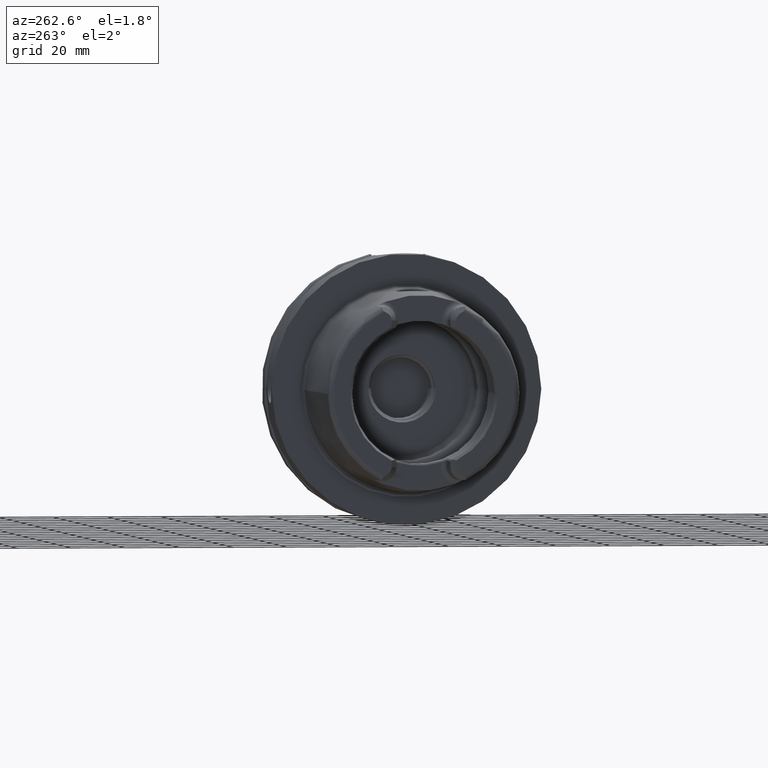
[diagram: clean part render]
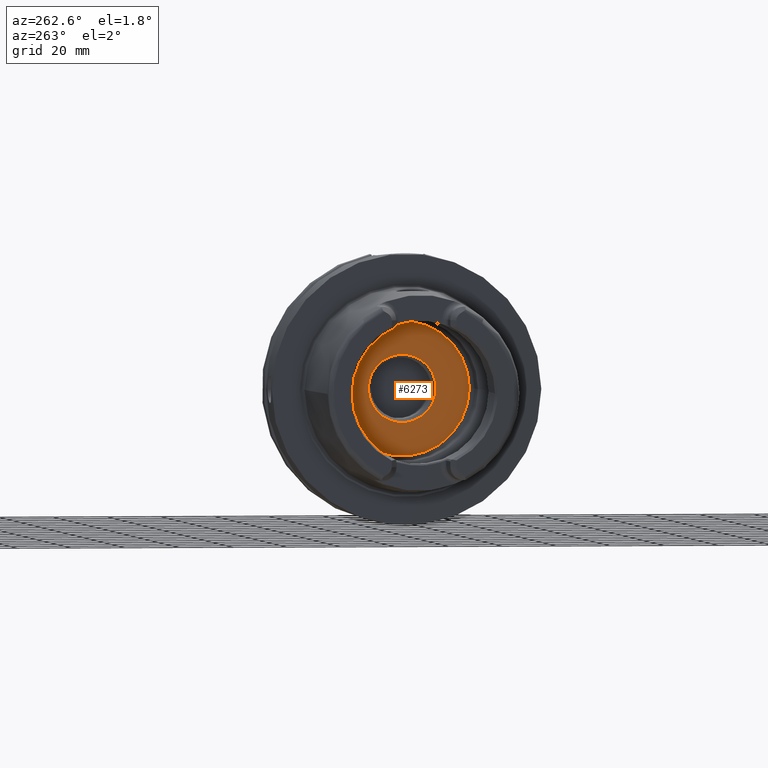
[diagram: same view with one face highlighted and labeled with its STEP entity id]
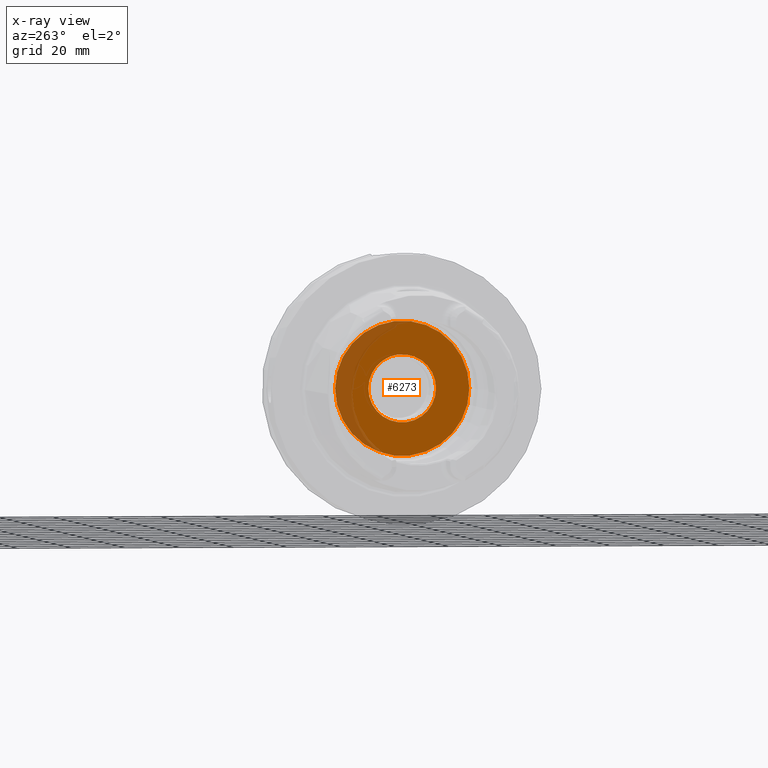
[diagram: x-ray of the same camera — body ghosted, the highlighted face saturated]
A machine part, auxiliary view. The second image highlights one B-rep face of the part: STEP entity #6273.
The next image is the same camera in x-ray: the body ghosted, the highlighted face saturated — about 20% of this face is hidden behind the body in this view.
In plain terms, the highlighted planar face has unit normal (1, 0, 0).
Its self-contained STEP definition (entity closure, byte-faithful):
#2414=CARTESIAN_POINT('',(1.25E1,0.E0,0.E0));
#2415=DIRECTION('',(1.E0,0.E0,0.E0));
#2416=DIRECTION('',(0.E0,1.E0,0.E0));
#2417=AXIS2_PLACEMENT_3D('',#2414,#2415,#2416);
#2424=CARTESIAN_POINT('',(1.25E1,0.E0,0.E0));
#2425=DIRECTION('',(-1.E0,0.E0,0.E0));
#2426=DIRECTION('',(0.E0,1.E0,0.E0));
#2427=AXIS2_PLACEMENT_3D('',#2424,#2425,#2426);
#2434=CARTESIAN_POINT('',(1.25E1,0.E0,0.E0));
#2435=DIRECTION('',(1.E0,0.E0,0.E0));
#2436=DIRECTION('',(0.E0,-1.E0,0.E0));
#2437=AXIS2_PLACEMENT_3D('',#2434,#2435,#2436);
#2439=CARTESIAN_POINT('',(1.25E1,0.E0,0.E0));
#2440=DIRECTION('',(1.E0,0.E0,0.E0));
#2441=DIRECTION('',(0.E0,1.E0,0.E0));
#2442=AXIS2_PLACEMENT_3D('',#2439,#2440,#2441);
#2879=CARTESIAN_POINT('',(1.25E1,2.49E1,0.E0));
#2881=VERTEX_POINT('',#2879);
#2883=CARTESIAN_POINT('',(1.25E1,-2.49E1,0.E0));
#2885=VERTEX_POINT('',#2883);
#3267=CARTESIAN_POINT('',(1.25E1,-1.25665E1,0.E0));
#3268=CARTESIAN_POINT('',(1.25E1,1.25665E1,0.E0));
#3269=VERTEX_POINT('',#3267);
#3270=VERTEX_POINT('',#3268);
#6258=CARTESIAN_POINT('',(1.25E1,0.E0,0.E0));
#6259=DIRECTION('',(1.E0,0.E0,0.E0));
#6260=DIRECTION('',(0.E0,-1.E0,0.E0));
#6261=AXIS2_PLACEMENT_3D('',#6258,#6259,#6260);
#6262=PLANE('',#6261);
#6263=ORIENTED_EDGE('',*,*,#6240,.T.);
#6264=ORIENTED_EDGE('',*,*,#6251,.F.);
#6265=EDGE_LOOP('',(#6263,#6264));
#6266=FACE_OUTER_BOUND('',#6265,.F.);
#6268=ORIENTED_EDGE('',*,*,#6267,.F.);
#6270=ORIENTED_EDGE('',*,*,#6269,.F.);
#6271=EDGE_LOOP('',(#6268,#6270));
#6272=FACE_BOUND('',#6271,.F.);
#6273=ADVANCED_FACE('',(#6266,#6272),#6262,.F.);
#2418=CIRCLE('',#2417,2.49E1);
#2428=CIRCLE('',#2427,2.49E1);
#2438=CIRCLE('',#2437,1.25665E1);
#2443=CIRCLE('',#2442,1.25665E1);
#6240=EDGE_CURVE('',#2881,#2885,#2418,.T.);
#6251=EDGE_CURVE('',#2881,#2885,#2428,.T.);
#6267=EDGE_CURVE('',#3269,#3270,#2438,.T.);
#6269=EDGE_CURVE('',#3270,#3269,#2443,.T.);